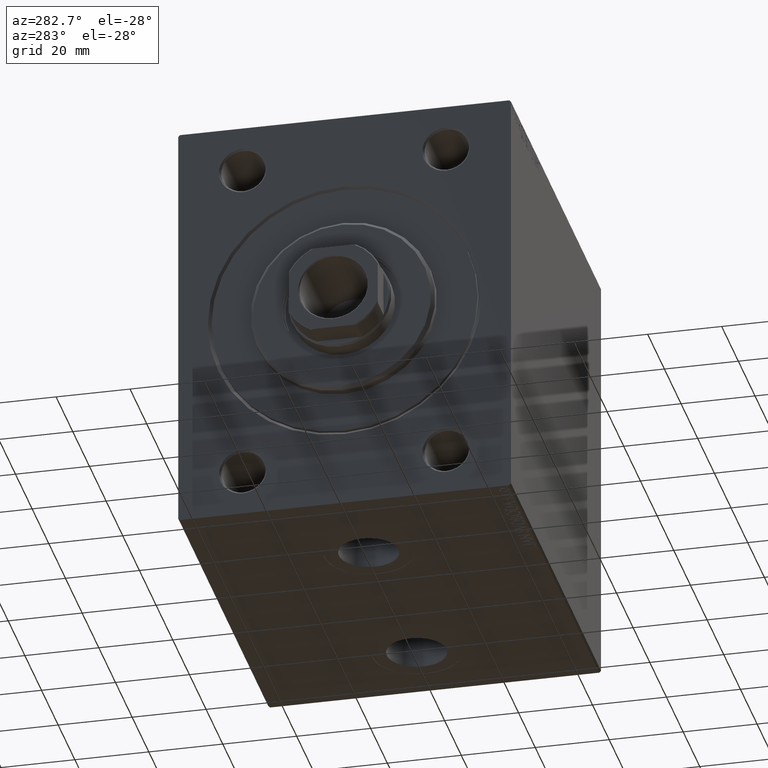
[diagram: clean part render]
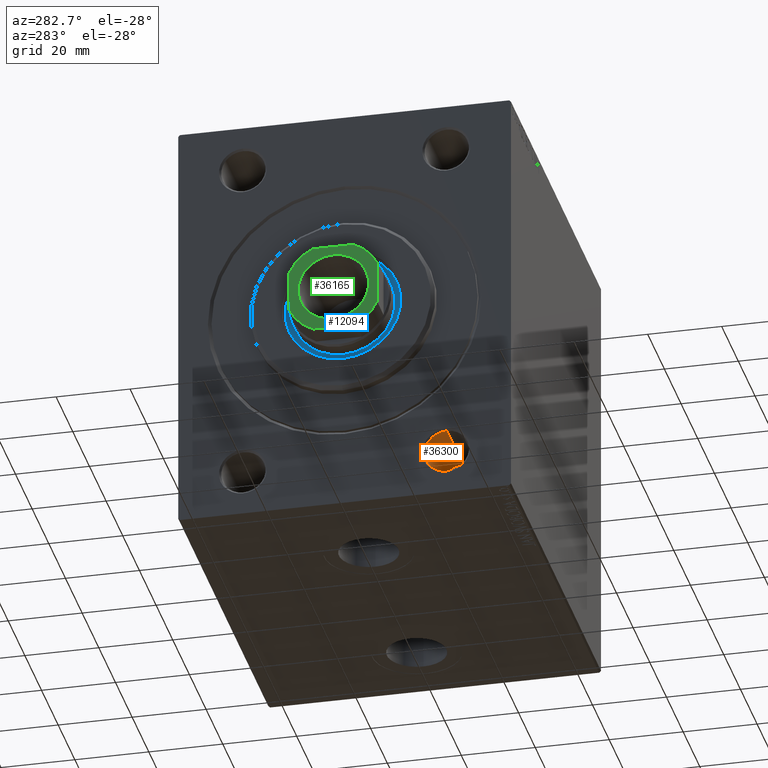
[diagram: same view with three faces highlighted in distinct colors, each labeled with its STEP entity id]
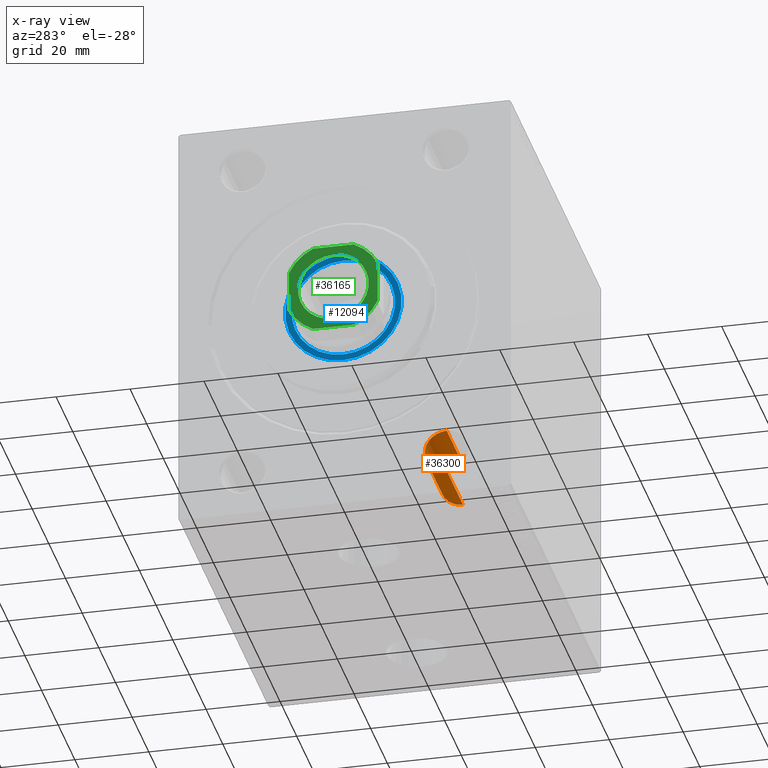
[diagram: x-ray of the same camera — body ghosted, the three highlighted faces saturated]
A machine part, auxiliary view with three faces highlighted in distinct colors.
The next image is the same camera in x-ray (body ghosted, the three faces saturated) — at least one of them is partly hidden behind the body in this view.
Their STEP definitions:

[orange] entity #36300 — the highlighted cylindrical surface (edge-blend (fillet) strip) has radius 6 mm, axis along (-1, -0, -0).
#1221 = CARTESIAN_POINT ( 'NONE',  ( 0.5000000000000281997, -27.49999999999999645, -45.00000000000001421 ) ) ;
#1245 = AXIS2_PLACEMENT_3D ( 'NONE', #9666, #23739, #45234 ) ;
#2429 = DIRECTION ( 'NONE',  ( -1.000000000000000000, -0.000000000000000000, -0.000000000000000000 ) ) ;
#2549 = CIRCLE ( 'NONE', #30556, 5.999999999999998224 ) ;
#3319 = VERTEX_POINT ( 'NONE', #18592 ) ;
#4201 = EDGE_CURVE ( 'NONE', #20989, #27151, #36259, .T. ) ;
#5238 = LINE ( 'NONE', #12154, #9137 ) ;
#8928 = LINE ( 'NONE', #16519, #17468 ) ;
#9137 = VECTOR ( 'NONE', #2429, 1000.000000000000000 ) ;
#9666 = CARTESIAN_POINT ( 'NONE',  ( 0.000000000000000000, -27.49999999999999645, -45.00000000000001421 ) ) ;
#10977 = CARTESIAN_POINT ( 'NONE',  ( 20.00000000000000000, -27.49999999999999645, -39.00000000000001421 ) ) ;
#11170 = DIRECTION ( 'NONE',  ( -1.000000000000000000, 0.000000000000000000, 0.000000000000000000 ) ) ;
#12154 = CARTESIAN_POINT ( 'NONE',  ( 0.000000000000000000, -27.49999999999999645, -39.00000000000001421 ) ) ;
#13853 = EDGE_CURVE ( 'NONE', #42326, #20989, #5238, .T. ) ;
#16519 = CARTESIAN_POINT ( 'NONE',  ( 0.000000000000000000, -27.49999999999999645, -51.00000000000000711 ) ) ;
#17468 = VECTOR ( 'NONE', #30366, 1000.000000000000000 ) ;
#17876 = AXIS2_PLACEMENT_3D ( 'NONE', #1221, #11170, #25247 ) ;
#18592 = CARTESIAN_POINT ( 'NONE',  ( 20.00000000000000000, -27.49999999999999645, -51.00000000000000711 ) ) ;
#19811 = CARTESIAN_POINT ( 'NONE',  ( 20.00000000000000000, -27.49999999999999645, -45.00000000000001421 ) ) ;
#20989 = VERTEX_POINT ( 'NONE', #43058 ) ;
#22789 = ORIENTED_EDGE ( 'NONE', *, *, #4201, .T. ) ;
#23739 = DIRECTION ( 'NONE',  ( -1.000000000000000000, -0.000000000000000000, -0.000000000000000000 ) ) ;
#24470 = EDGE_CURVE ( 'NONE', #3319, #27151, #8928, .T. ) ;
#25247 = DIRECTION ( 'NONE',  ( 0.000000000000000000, 0.000000000000000000, -1.000000000000000000 ) ) ;
#27151 = VERTEX_POINT ( 'NONE', #31835 ) ;
#27201 = CYLINDRICAL_SURFACE ( 'NONE', #1245, 5.999999999999998224 ) ;
#29601 = ORIENTED_EDGE ( 'NONE', *, *, #13853, .T. ) ;
#30366 = DIRECTION ( 'NONE',  ( -1.000000000000000000, -0.000000000000000000, -0.000000000000000000 ) ) ;
#30556 = AXIS2_PLACEMENT_3D ( 'NONE', #19811, #33875, #41289 ) ;
#31412 = EDGE_CURVE ( 'NONE', #42326, #3319, #2549, .T. ) ;
#31835 = CARTESIAN_POINT ( 'NONE',  ( 0.5000000000000281997, -27.49999999999999645, -51.00000000000000711 ) ) ;
#33875 = DIRECTION ( 'NONE',  ( -1.000000000000000000, -0.000000000000000000, -0.000000000000000000 ) ) ;
#36259 = CIRCLE ( 'NONE', #17876, 5.999999999999998224 ) ;
#36300 = ADVANCED_FACE ( 'NONE', ( #41311 ), #27201, .F. ) ;
#41045 = ORIENTED_EDGE ( 'NONE', *, *, #31412, .F. ) ;
#41289 = DIRECTION ( 'NONE',  ( 0.000000000000000000, 0.000000000000000000, 1.000000000000000000 ) ) ;
#41311 = FACE_OUTER_BOUND ( 'NONE', #43489, .T. ) ;
#42326 = VERTEX_POINT ( 'NONE', #10977 ) ;
#43058 = CARTESIAN_POINT ( 'NONE',  ( 0.5000000000000281997, -27.49999999999999645, -39.00000000000001421 ) ) ;
#43489 = EDGE_LOOP ( 'NONE', ( #45424, #41045, #29601, #22789 ) ) ;
#45234 = DIRECTION ( 'NONE',  ( 0.000000000000000000, 0.000000000000000000, 1.000000000000000000 ) ) ;
#45424 = ORIENTED_EDGE ( 'NONE', *, *, #24470, .F. ) ;

[blue] entity #12094 — the highlighted planar face has unit normal (-1, 0, 0).
#1159 = ORIENTED_EDGE ( 'NONE', *, *, #41219, .F. ) ;
#4948 = AXIS2_PLACEMENT_3D ( 'NONE', #26003, #12380, #12148 ) ;
#6263 = EDGE_LOOP ( 'NONE', ( #1159, #33587 ) ) ;
#8543 = EDGE_CURVE ( 'NONE', #34884, #24852, #18590, .T. ) ;
#9120 = ORIENTED_EDGE ( 'NONE', *, *, #8543, .T. ) ;
#9453 = AXIS2_PLACEMENT_3D ( 'NONE', #45280, #17100, #20566 ) ;
#10022 = CARTESIAN_POINT ( 'NONE',  ( 1.500000000000000000, 0.000000000000000000, 0.000000000000000000 ) ) ;
#11534 = DIRECTION ( 'NONE',  ( 0.000000000000000000, 0.000000000000000000, -1.000000000000000000 ) ) ;
#11971 = AXIS2_PLACEMENT_3D ( 'NONE', #10022, #20645, #17408 ) ;
#12094 = ADVANCED_FACE ( 'NONE', ( #39750, #38089 ), #23091, .T. ) ;
#12148 = DIRECTION ( 'NONE',  ( 0.000000000000000000, 0.000000000000000000, -1.000000000000000000 ) ) ;
#12380 = DIRECTION ( 'NONE',  ( 1.000000000000000000, 0.000000000000000000, 0.000000000000000000 ) ) ;
#15213 = CARTESIAN_POINT ( 'NONE',  ( 1.499999999999999556, 0.000000000000000000, 0.000000000000000000 ) ) ;
#15968 = CARTESIAN_POINT ( 'NONE',  ( 1.500000000000000000, 1.928818708657080950E-15, -15.75000000000000000 ) ) ;
#16615 = DIRECTION ( 'NONE',  ( 1.000000000000000000, 0.000000000000000000, 0.000000000000000000 ) ) ;
#17100 = DIRECTION ( 'NONE',  ( 1.000000000000000000, 0.000000000000000000, 0.000000000000000000 ) ) ;
#17408 = DIRECTION ( 'NONE',  ( 0.000000000000000000, 0.000000000000000000, -1.000000000000000000 ) ) ;
#18431 = VERTEX_POINT ( 'NONE', #40953 ) ;
#18590 = CIRCLE ( 'NONE', #11971, 15.75000000000000000 ) ;
#20566 = DIRECTION ( 'NONE',  ( 0.000000000000000000, 0.000000000000000000, -1.000000000000000000 ) ) ;
#20645 = DIRECTION ( 'NONE',  ( 1.000000000000000000, 0.000000000000000000, 0.000000000000000000 ) ) ;
#23091 = PLANE ( 'NONE',  #42308 ) ;
#24838 = CIRCLE ( 'NONE', #4948, 14.00000000000000178 ) ;
#24852 = VERTEX_POINT ( 'NONE', #32325 ) ;
#26003 = CARTESIAN_POINT ( 'NONE',  ( 1.499999999999999556, 0.000000000000000000, 0.000000000000000000 ) ) ;
#28581 = EDGE_CURVE ( 'NONE', #24852, #34884, #43391, .T. ) ;
#30509 = VERTEX_POINT ( 'NONE', #43148 ) ;
#30926 = CARTESIAN_POINT ( 'NONE',  ( 1.500000000000000000, 0.000000000000000000, 0.000000000000000000 ) ) ;
#32325 = CARTESIAN_POINT ( 'NONE',  ( 1.500000000000000000, 0.000000000000000000, 15.75000000000000000 ) ) ;
#33587 = ORIENTED_EDGE ( 'NONE', *, *, #45197, .F. ) ;
#33927 = DIRECTION ( 'NONE',  ( 0.000000000000000000, 0.000000000000000000, -1.000000000000000000 ) ) ;
#34884 = VERTEX_POINT ( 'NONE', #15968 ) ;
#36019 = CIRCLE ( 'NONE', #41937, 14.00000000000000178 ) ;
#38089 = FACE_OUTER_BOUND ( 'NONE', #44925, .T. ) ;
#39250 = DIRECTION ( 'NONE',  ( 1.000000000000000000, 0.000000000000000000, 0.000000000000000000 ) ) ;
#39750 = FACE_BOUND ( 'NONE', #6263, .T. ) ;
#40953 = CARTESIAN_POINT ( 'NONE',  ( 1.499999999999999556, 0.000000000000000000, -14.00000000000000178 ) ) ;
#40977 = ORIENTED_EDGE ( 'NONE', *, *, #28581, .T. ) ;
#41219 = EDGE_CURVE ( 'NONE', #18431, #30509, #24838, .T. ) ;
#41937 = AXIS2_PLACEMENT_3D ( 'NONE', #15213, #39250, #11534 ) ;
#42308 = AXIS2_PLACEMENT_3D ( 'NONE', #30926, #16615, #33927 ) ;
#43148 = CARTESIAN_POINT ( 'NONE',  ( 1.499999999999999556, 1.714505518806294441E-15, 14.00000000000000178 ) ) ;
#43391 = CIRCLE ( 'NONE', #9453, 15.75000000000000000 ) ;
#44925 = EDGE_LOOP ( 'NONE', ( #40977, #9120 ) ) ;
#45197 = EDGE_CURVE ( 'NONE', #30509, #18431, #36019, .T. ) ;
#45280 = CARTESIAN_POINT ( 'NONE',  ( 1.500000000000000000, 0.000000000000000000, 0.000000000000000000 ) ) ;

[green] entity #36165 — the highlighted planar face has unit normal (-1, 0, 0).
#655 = EDGE_LOOP ( 'NONE', ( #7314, #758, #39499, #16074, #6351, #14108, #17316, #41038 ) ) ;
#758 = ORIENTED_EDGE ( 'NONE', *, *, #17207, .T. ) ;
#1696 = DIRECTION ( 'NONE',  ( 1.000000000000000000, 0.000000000000000000, 0.000000000000000000 ) ) ;
#1875 = VECTOR ( 'NONE', #28631, 1000.000000000000000 ) ;
#1945 = EDGE_CURVE ( 'NONE', #25347, #29558, #24806, .T. ) ;
#2058 = DIRECTION ( 'NONE',  ( 1.000000000000000000, 0.000000000000000000, 0.000000000000000000 ) ) ;
#2289 = CARTESIAN_POINT ( 'NONE',  ( -5.499090833947067658, 11.99999999999999645, 104.0000000000000142 ) ) ;
#2510 = VERTEX_POINT ( 'NONE', #24830 ) ;
#2855 = CARTESIAN_POINT ( 'NONE',  ( 5.499090833947004597, -12.00000000000000355, 104.0000000000000142 ) ) ;
#3748 = ORIENTED_EDGE ( 'NONE', *, *, #11561, .T. ) ;
#3860 = VERTEX_POINT ( 'NONE', #2289 ) ;
#4008 = DIRECTION ( 'NONE',  ( -2.168404344971008868E-16, 1.000000000000000000, -0.000000000000000000 ) ) ;
#5713 = ORIENTED_EDGE ( 'NONE', *, *, #13064, .T. ) ;
#6343 = CARTESIAN_POINT ( 'NONE',  ( 0.000000000000000000, 0.000000000000000000, 104.0000000000000142 ) ) ;
#6351 = ORIENTED_EDGE ( 'NONE', *, *, #1945, .T. ) ;
#6686 = CARTESIAN_POINT ( 'NONE',  ( 0.000000000000000000, 0.000000000000000000, 104.0000000000000142 ) ) ;
#7028 = AXIS2_PLACEMENT_3D ( 'NONE', #34192, #12528, #16662 ) ;
#7279 = CARTESIAN_POINT ( 'NONE',  ( -12.00000000000000355, 11.99999999999999645, 104.0000000000000142 ) ) ;
#7314 = ORIENTED_EDGE ( 'NONE', *, *, #16879, .T. ) ;
#7887 = VERTEX_POINT ( 'NONE', #14382 ) ;
#8348 = DIRECTION ( 'NONE',  ( -0.000000000000000000, 0.000000000000000000, 1.000000000000000000 ) ) ;
#8773 = FACE_OUTER_BOUND ( 'NONE', #655, .T. ) ;
#9430 = CIRCLE ( 'NONE', #39696, 13.20000000000002238 ) ;
#10126 = LINE ( 'NONE', #44317, #16657 ) ;
#11561 = EDGE_CURVE ( 'NONE', #12359, #7887, #35622, .T. ) ;
#11904 = VECTOR ( 'NONE', #19029, 1000.000000000000000 ) ;
#12313 = CARTESIAN_POINT ( 'NONE',  ( 0.000000000000000000, 0.000000000000000000, 104.0000000000000142 ) ) ;
#12359 = VERTEX_POINT ( 'NONE', #44721 ) ;
#12528 = DIRECTION ( 'NONE',  ( -0.000000000000000000, 0.000000000000000000, 1.000000000000000000 ) ) ;
#13064 = EDGE_CURVE ( 'NONE', #7887, #12359, #23101, .T. ) ;
#13409 = EDGE_CURVE ( 'NONE', #28979, #2510, #22410, .T. ) ;
#14020 = DIRECTION ( 'NONE',  ( 1.000000000000000000, 0.000000000000000000, 0.000000000000000000 ) ) ;
#14108 = ORIENTED_EDGE ( 'NONE', *, *, #28102, .T. ) ;
#14242 = AXIS2_PLACEMENT_3D ( 'NONE', #6343, #24343, #17418 ) ;
#14382 = CARTESIAN_POINT ( 'NONE',  ( 9.550000000000002487, 0.000000000000000000, 104.0000000000000142 ) ) ;
#14710 = DIRECTION ( 'NONE',  ( -0.000000000000000000, 0.000000000000000000, 1.000000000000000000 ) ) ;
#14744 = DIRECTION ( 'NONE',  ( -0.000000000000000000, 0.000000000000000000, 1.000000000000000000 ) ) ;
#15254 = CARTESIAN_POINT ( 'NONE',  ( 11.99999999999999645, 5.499090833947010815, 104.0000000000000142 ) ) ;
#15690 = CARTESIAN_POINT ( 'NONE',  ( 0.000000000000000000, 0.000000000000000000, 104.0000000000000142 ) ) ;
#16074 = ORIENTED_EDGE ( 'NONE', *, *, #30417, .T. ) ;
#16657 = VECTOR ( 'NONE', #30893, 1000.000000000000000 ) ;
#16662 = DIRECTION ( 'NONE',  ( 1.000000000000000000, 0.000000000000000000, 0.000000000000000000 ) ) ;
#16879 = EDGE_CURVE ( 'NONE', #2510, #26978, #31248, .T. ) ;
#17207 = EDGE_CURVE ( 'NONE', #26978, #18764, #20298, .T. ) ;
#17316 = ORIENTED_EDGE ( 'NONE', *, *, #20677, .T. ) ;
#17418 = DIRECTION ( 'NONE',  ( 1.000000000000000000, 0.000000000000000000, 0.000000000000000000 ) ) ;
#18764 = VERTEX_POINT ( 'NONE', #27938 ) ;
#19029 = DIRECTION ( 'NONE',  ( 2.168404344971008868E-16, -1.000000000000000000, 0.000000000000000000 ) ) ;
#19471 = DIRECTION ( 'NONE',  ( 0.000000000000000000, -0.000000000000000000, -1.000000000000000000 ) ) ;
#20298 = CIRCLE ( 'NONE', #7028, 13.19999999999999929 ) ;
#20677 = EDGE_CURVE ( 'NONE', #43494, #28979, #28853, .T. ) ;
#21889 = EDGE_LOOP ( 'NONE', ( #5713, #3748 ) ) ;
#22410 = CIRCLE ( 'NONE', #29017, 13.20000000000000107 ) ;
#22845 = DIRECTION ( 'NONE',  ( -0.000000000000000000, 0.000000000000000000, 1.000000000000000000 ) ) ;
#23101 = CIRCLE ( 'NONE', #27537, 9.550000000000002487 ) ;
#24343 = DIRECTION ( 'NONE',  ( 0.000000000000000000, -0.000000000000000000, -1.000000000000000000 ) ) ;
#24806 = LINE ( 'NONE', #7279, #11904 ) ;
#24830 = CARTESIAN_POINT ( 'NONE',  ( 12.00000000000000000, -5.499090833947013479, 104.0000000000000142 ) ) ;
#24957 = CARTESIAN_POINT ( 'NONE',  ( -11.99999999999999822, -12.00000000000000355, 104.0000000000000142 ) ) ;
#25347 = VERTEX_POINT ( 'NONE', #37763 ) ;
#25767 = CARTESIAN_POINT ( 'NONE',  ( -5.499090833947052559, -12.00000000000000355, 104.0000000000000142 ) ) ;
#26559 = DIRECTION ( 'NONE',  ( 1.000000000000000000, 0.000000000000000000, 0.000000000000000000 ) ) ;
#26978 = VERTEX_POINT ( 'NONE', #15254 ) ;
#27537 = AXIS2_PLACEMENT_3D ( 'NONE', #12313, #19471, #1696 ) ;
#27938 = CARTESIAN_POINT ( 'NONE',  ( 5.499090833947013479, 11.99999999999999645, 104.0000000000000142 ) ) ;
#28016 = CARTESIAN_POINT ( 'NONE',  ( 11.99999999999999645, 11.99999999999999645, 104.0000000000000142 ) ) ;
#28102 = EDGE_CURVE ( 'NONE', #29558, #43494, #9430, .T. ) ;
#28631 = DIRECTION ( 'NONE',  ( 1.000000000000000000, 0.000000000000000000, 0.000000000000000000 ) ) ;
#28853 = LINE ( 'NONE', #24957, #1875 ) ;
#28854 = CARTESIAN_POINT ( 'NONE',  ( -12.00000000000000000, -5.499090833947057888, 104.0000000000000142 ) ) ;
#28979 = VERTEX_POINT ( 'NONE', #2855 ) ;
#29017 = AXIS2_PLACEMENT_3D ( 'NONE', #40670, #8348, #26559 ) ;
#29558 = VERTEX_POINT ( 'NONE', #28854 ) ;
#30417 = EDGE_CURVE ( 'NONE', #3860, #25347, #32033, .T. ) ;
#30893 = DIRECTION ( 'NONE',  ( -1.000000000000000000, -0.000000000000000000, -0.000000000000000000 ) ) ;
#31248 = LINE ( 'NONE', #28016, #43191 ) ;
#32033 = CIRCLE ( 'NONE', #43853, 13.20000000000002238 ) ;
#33680 = FACE_BOUND ( 'NONE', #21889, .T. ) ;
#34192 = CARTESIAN_POINT ( 'NONE',  ( 0.000000000000000000, 0.000000000000000000, 104.0000000000000142 ) ) ;
#35327 = EDGE_CURVE ( 'NONE', #18764, #3860, #10126, .T. ) ;
#35622 = CIRCLE ( 'NONE', #14242, 9.550000000000002487 ) ;
#36165 = ADVANCED_FACE ( 'NONE', ( #33680, #8773 ), #43422, .T. ) ;
#37763 = CARTESIAN_POINT ( 'NONE',  ( -12.00000000000000178, 5.499090833947057000, 104.0000000000000142 ) ) ;
#39499 = ORIENTED_EDGE ( 'NONE', *, *, #35327, .T. ) ;
#39696 = AXIS2_PLACEMENT_3D ( 'NONE', #42673, #14710, #14020 ) ;
#40670 = CARTESIAN_POINT ( 'NONE',  ( 0.000000000000000000, 0.000000000000000000, 104.0000000000000142 ) ) ;
#41038 = ORIENTED_EDGE ( 'NONE', *, *, #13409, .T. ) ;
#42673 = CARTESIAN_POINT ( 'NONE',  ( 0.000000000000000000, 0.000000000000000000, 104.0000000000000142 ) ) ;
#43191 = VECTOR ( 'NONE', #4008, 1000.000000000000000 ) ;
#43422 = PLANE ( 'NONE',  #45499 ) ;
#43494 = VERTEX_POINT ( 'NONE', #25767 ) ;
#43853 = AXIS2_PLACEMENT_3D ( 'NONE', #6686, #14744, #45714 ) ;
#44317 = CARTESIAN_POINT ( 'NONE',  ( -12.00000000000000355, 11.99999999999999645, 104.0000000000000142 ) ) ;
#44721 = CARTESIAN_POINT ( 'NONE',  ( -9.550000000000002487, 1.169537693185722558E-15, 104.0000000000000142 ) ) ;
#45499 = AXIS2_PLACEMENT_3D ( 'NONE', #15690, #22845, #2058 ) ;
#45714 = DIRECTION ( 'NONE',  ( 1.000000000000000000, 0.000000000000000000, 0.000000000000000000 ) ) ;